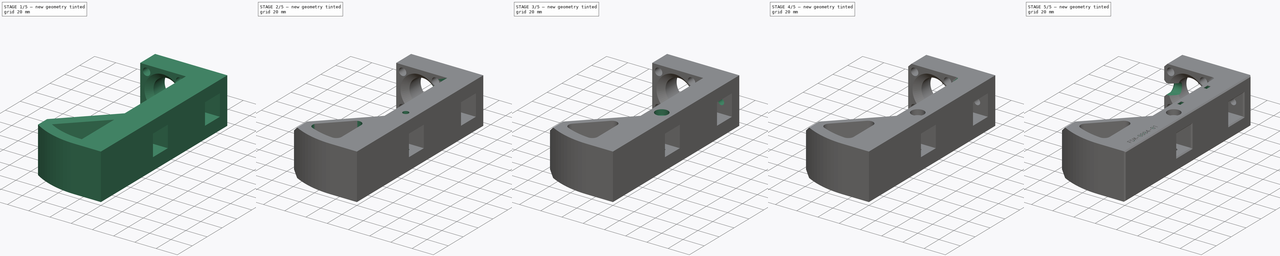
[diagram: build sequence overview — one tinted view per stage of 5, left to right]
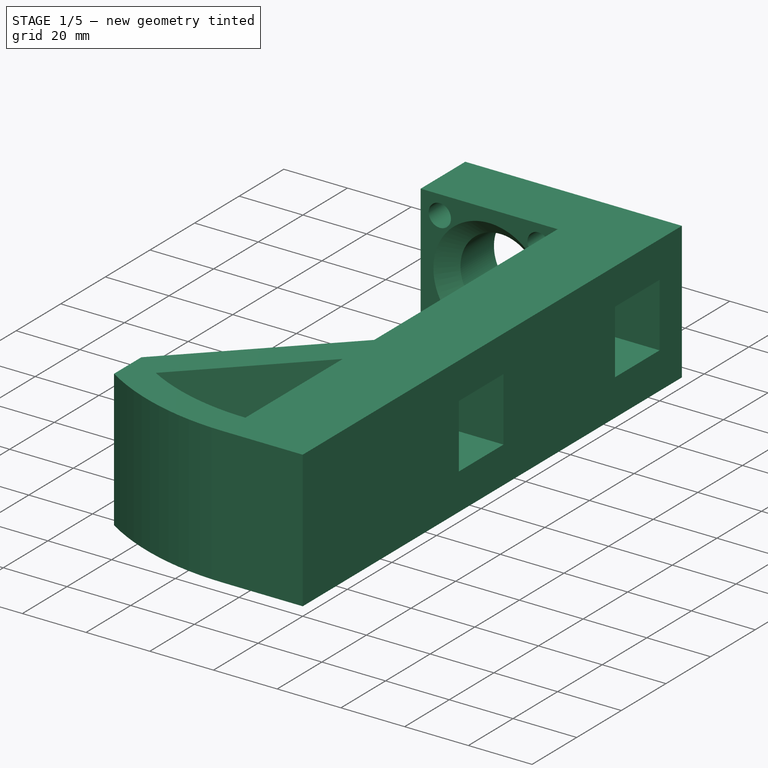
[diagram: stage 1 of 5 — iso view after this stage's code; geometry added in this stage tinted green]
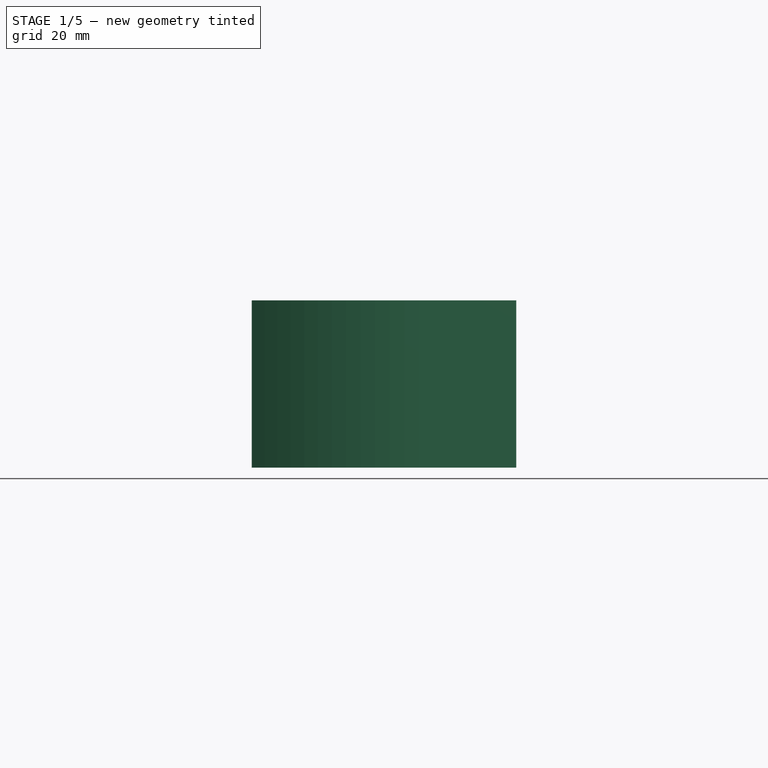
[diagram: stage 1 of 5 — front view after this stage's code; geometry added in this stage tinted green]
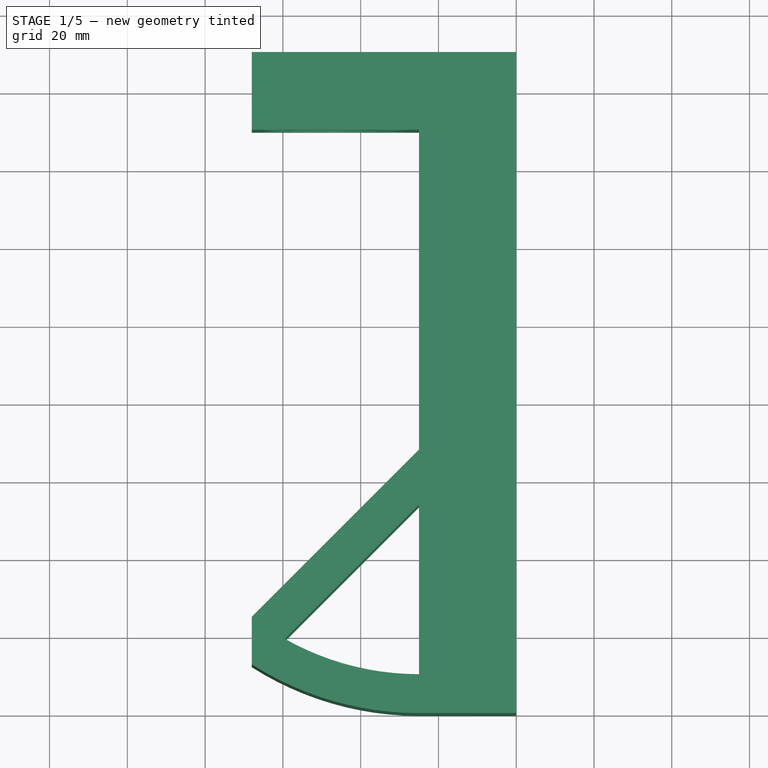
[diagram: stage 1 of 5 — top view after this stage's code; geometry added in this stage tinted green]
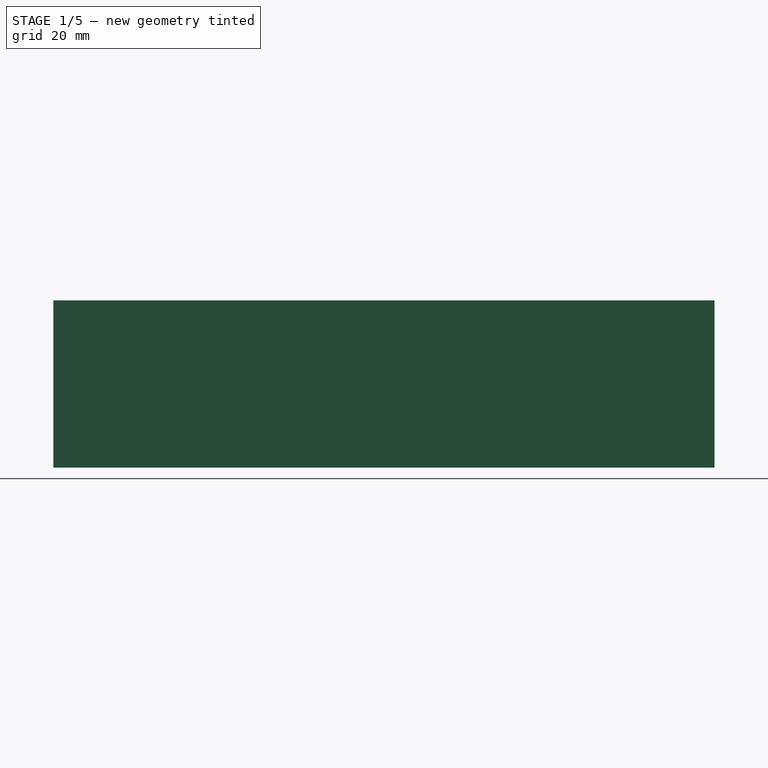
[diagram: stage 1 of 5 — right view after this stage's code; geometry added in this stage tinted green]
FCSTD DOCUMENT  (FreeCAD 0.19R24291 (Git))
Label: FDM-0004_back-right-leg
License: All rights reserved
LicenseURL: http://en.wikipedia.org/wiki/All_rights_reserved
objects: Sketcher::SketchObject×14, PartDesign::Pocket×13, PartDesign::Plane×7, PartDesign::Chamfer×6, PartDesign::Fillet×3, PartDesign::Pad×1, Part::Part2DObjectPython×1, PartDesign::Groove×1, PartDesign::Body×1
note: 71 computed .brp shape members not serialized (recipe doc carries the construction recipe); baked Part::Feature solids carry a one-line shape summary decoded from their .brp

FEATURE [Sketcher::SketchObject] Sketch005
  FullyConstrained = true
  MapMode = 5
  Support = -> [XY_Plane]
  sketch-geometry (1):
    g0: Circle CenterX=-10 CenterY=80 CenterZ=0 NormalX=0 NormalY=0 NormalZ=1 AngleXU=0 Radius=6
  constraints (3):
    c: Distance(g0,g-1) = 80
    c: Distance(g0,g-2) = 10
    c: Diameter(g0) = 12
FEATURE [Sketcher::SketchObject] Sketch006
  FullyConstrained = true
  MapMode = 5
  Support = -> [XY_Plane]
  sketch-geometry (1):
    g0: Circle CenterX=-10 CenterY=80 CenterZ=0 NormalX=0 NormalY=0 NormalZ=1 AngleXU=0 Radius=2.75
  constraints (3):
    c: Distance(g0,g-2) = 10
    c: Distance(g0,g-1) = 80
    c: Diameter(g0) = 5.5
FEATURE [Sketcher::SketchObject] Sketch
  FullyConstrained = true
  MapMode = 5
  Support = -> [XY_Plane]
  sketch-geometry (12):
    g0: LineSegment StartX=0 StartY=0 StartZ=0 EndX=0 EndY=170 EndZ=0
    g1: LineSegment StartX=0 StartY=170 StartZ=0 EndX=-68 EndY=170 EndZ=0
    g2: LineSegment StartX=-68 StartY=170 StartZ=0 EndX=-68 EndY=150 EndZ=0
    g3: LineSegment StartX=-68 StartY=150 StartZ=0 EndX=-25 EndY=150 EndZ=0
    g4: LineSegment StartX=-25 StartY=150 StartZ=0 EndX=-25 EndY=67.7642 EndZ=0
    g5: LineSegment StartX=-25 StartY=67.7642 StartZ=0 EndX=-68 EndY=24.7642 EndZ=0
    g6: LineSegment StartX=-68 StartY=24.7642 StartZ=0 EndX=-68 EndY=12.539 EndZ=0
    g7: LineSegment StartX=0 StartY=0 StartZ=0 EndX=-25 EndY=5.22817e-11 EndZ=0
    g8: ArcOfCircle CenterX=-24.9999 CenterY=80 CenterZ=0 NormalX=0 NormalY=0 NormalZ=1 AngleXU=0 Radius=80 StartAngle=4.14492 EndAngle=4.71239
    g9: ArcOfCircle CenterX=-24.9999 CenterY=80 CenterZ=0 NormalX=0 NormalY=0 NormalZ=1 AngleXU=0 Radius=70 StartAngle=4.19671 EndAngle=4.71239
    g10: LineSegment StartX=-25 StartY=10 StartZ=0 EndX=-25 EndY=53.6221 EndZ=0
    g11: LineSegment StartX=-25 StartY=53.6221 StartZ=0 EndX=-59.519 EndY=19.1031 EndZ=0
  constraints (36):
    c: Coincident(g-1,g0)
    c: PointOnObject(g0,g-2)
    c: Coincident(g0,g1)
    c: Horizontal(g1)
    c: Coincident(g1,g2)
    c: Vertical(g2)
    c: Coincident(g2,g3)
    c: Horizontal(g3)
    c: Coincident(g3,g4)
    c: Vertical(g4)
    c: Coincident(g4,g5)
    c: Coincident(g5,g6)
    c: Vertical(g6)
    c: Coincident(g0,g7)
    c: PointOnObject(g7,g-1)
    c: Coincident(g8,g6)
    c: Coincident(g8,g7)
    c: Distance(g7) = 25
    c: PointOnObject(g7,g4)
    c: Distance(g2) = 20
    c: Distance(g0) = 170
    c: Tangent(g8,g7)
    c: Radius(g8) = 80
    c: Coincident(g9,g8)
    c: Radius(g9) = 70
    c: Coincident(g9,g10)
    c: Coincident(g10,g11)
    c: Coincident(g11,g9)
    c: Vertical(g10)
    c: PointOnObject(g4,g10)
    c: Parallel(g11,g5)
    c: Angle(g11,g10) = 0.785398
    c: Distance(g10,g5) = 10
    c: PointOnObject(g5,g9)
    c: Distance(g3) = 43
    c: PointOnObject(g5,g2)
FEATURE [PartDesign::Pad] Pad
  AllowMultiFace = false
  Direction = (1,1,1)
  Length = 43
  Length2 = 100
  Profile = -> Sketch
  Refine = true
  Type = 0
FEATURE [Sketcher::SketchObject] Sketch001
  ExternalGeometry = -> [Pad]
  FullyConstrained = true
  MapMode = 5
  Placement = pos=(0,0,0) rot=(0.57735,0.57735,0.57735;2.0944rad)
  Support = -> [Pad]
  sketch-geometry (10):
    g0: LineSegment StartX=70 StartY=31.5 StartZ=0 EndX=90 EndY=31.5 EndZ=0
    g1: LineSegment StartX=90 StartY=31.5 StartZ=0 EndX=90 EndY=11.5 EndZ=0
    g2: LineSegment StartX=90 StartY=11.5 StartZ=0 EndX=70 EndY=11.5 EndZ=0
    g3: LineSegment StartX=70 StartY=11.5 StartZ=0 EndX=70 EndY=31.5 EndZ=0
    g4: LineSegment StartX=0 StartY=21.5 StartZ=0 EndX=70 EndY=21.5 EndZ=0
    g5: LineSegment StartX=140 StartY=31.5 StartZ=0 EndX=160 EndY=31.5 EndZ=0
    g6: LineSegment StartX=160 StartY=31.5 StartZ=0 EndX=160 EndY=11.5 EndZ=0
    g7: LineSegment StartX=160 StartY=11.5 StartZ=0 EndX=140 EndY=11.5 EndZ=0
    g8: LineSegment StartX=140 StartY=11.5 StartZ=0 EndX=140 EndY=31.5 EndZ=0
    g9: LineSegment StartX=90 StartY=21.5 StartZ=0 EndX=140 EndY=21.5 EndZ=0
  constraints (29):
    c: Coincident(g0,g1)
    c: Coincident(g1,g2)
    c: Coincident(g2,g3)
    c: Coincident(g3,g0)
    c: Horizontal(g0)
    c: Horizontal(g2)
    c: Vertical(g1)
    c: Vertical(g3)
    c: Symmetric(g-4,g-1,g4)
    c: Horizontal(g4)
    c: Symmetric(g0,g2,g4)
    c: Distance(g0) = 20
    c: Distance(g1) = 20
    c: Distance(g4) = 70
    c: Coincident(g5,g6)
    c: Coincident(g6,g7)
    c: Coincident(g7,g8)
    c: Coincident(g8,g5)
    c: Horizontal(g5)
    c: Horizontal(g7)
    c: Vertical(g6)
    c: Vertical(g8)
    c: Distance(g4,g8) = 70
    c: Distance(g5) = 20
    c: Distance(g8) = 20
    c: PointOnObject(g9,g1)
    c: Horizontal(g9)
    c: PointOnObject(g4,g9)
    c: Symmetric(g8,g8,g9)
FEATURE [PartDesign::Pocket] Pocket
  AllowMultiFace = false
  BaseFeature = -> Pad
  Length = 20
  Length2 = 100
  Profile = -> Sketch001
  Refine = true
  Type = 0
FEATURE [Sketcher::SketchObject] Sketch002
  ExternalGeometry = -> [Pocket]
  FullyConstrained = false
  MapMode = 5
  Placement = pos=(0,170,0) rot=(0,0.707107,0.707107;3.14159rad)
  Support = -> [Pocket]
  sketch-geometry (10):
    g0: Circle CenterX=46.5 CenterY=21.5 CenterZ=0 NormalX=0 NormalY=0 NormalZ=1 AngleXU=0 Radius=12.5
    g1: LineSegment StartX=31 StartY=37 StartZ=0 EndX=62 EndY=37 EndZ=0
    g2: LineSegment StartX=62 StartY=37 StartZ=0 EndX=62 EndY=6 EndZ=0
    g3: LineSegment StartX=62 StartY=6 StartZ=0 EndX=31 EndY=6 EndZ=0
    g4: LineSegment StartX=31 StartY=6 StartZ=0 EndX=31 EndY=37 EndZ=0
    g5: Circle CenterX=31 CenterY=37 CenterZ=0 NormalX=0 NormalY=0 NormalZ=1 AngleXU=0 Radius=1.75
    g6: Circle CenterX=62 CenterY=37 CenterZ=0 NormalX=0 NormalY=0 NormalZ=1 AngleXU=0 Radius=1.75
    g7: Circle CenterX=62 CenterY=6 CenterZ=0 NormalX=0 NormalY=0 NormalZ=1 AngleXU=0 Radius=1.75
    g8: Circle CenterX=31 CenterY=6 CenterZ=0 NormalX=0 NormalY=0 NormalZ=1 AngleXU=0 Radius=1.75
    g9: GeomPoint X=62 Y=21.5716 Z=0
  constraints (24):
    c: Distance(g0,g-3) = 21.5
    c: Distance(g0,g-4) = 21.5
    c: Diameter(g0) = 25
    c: Coincident(g1,g2)
    c: Coincident(g2,g3)
    c: Coincident(g3,g4)
    c: Coincident(g4,g1)
    c: Horizontal(g1)
    c: Horizontal(g3)
    c: Vertical(g2)
    c: Vertical(g4)
    c: Distance(g2) = 31
    c: Distance(g1) = 31
    c: Coincident(g5,g1)
    c: Coincident(g6,g1)
    c: Coincident(g7,g2)
    c: Coincident(g8,g3)
    c: Diameter(g5) = 3.5
    c: Diameter(g8) = 3.5
    c: Diameter(g7) = 3.5
    c: Diameter(g6) = 3.5
    c: PointOnObject(g9,g2)
    c: Distance(g0,g2) = 15.5
    c: Distance(g0,g1) = 15.5
FEATURE [PartDesign::Pocket] Pocket001
  AllowMultiFace = false
  BaseFeature = -> Pocket
  Length = 20
  Length2 = 100
  Profile = -> Sketch002
  Refine = true
  Type = 0
FEATURE [PartDesign::Chamfer] Chamfer
  Angle = 45
  Base = -> Pocket001 [Edge64]
  BaseFeature = -> Pocket001
  ChamferType = 0
  FlipDirection = false
  Size = 5
  Size2 = 1
  SupportTransform = false
FEATURE [Sketcher::SketchObject] Sketch003
  FullyConstrained = true
  MapMode = 5
  Placement = pos=(0,150,0) rot=(1,0,0;1.5708rad)
  Support = -> [Pocket001]
  sketch-geometry (8):
    g0: Circle CenterX=-31 CenterY=37 CenterZ=0 NormalX=0 NormalY=0 NormalZ=1 AngleXU=0 Radius=3.5
    g1: Circle CenterX=-62 CenterY=6 CenterZ=0 NormalX=0 NormalY=0 NormalZ=1 AngleXU=0 Radius=3.5
    g2: Circle CenterX=-62 CenterY=37 CenterZ=0 NormalX=0 NormalY=0 NormalZ=1 AngleXU=0 Radius=3.5
    g3: Circle CenterX=-31 CenterY=6 CenterZ=0 NormalX=0 NormalY=0 NormalZ=1 AngleXU=0 Radius=3.5
    g4: LineSegment StartX=-62 StartY=37 StartZ=0 EndX=-31 EndY=37 EndZ=0
    g5: LineSegment StartX=-31 StartY=37 StartZ=0 EndX=-31 EndY=6 EndZ=0
    g6: LineSegment StartX=-31 StartY=6 StartZ=0 EndX=-62 EndY=6 EndZ=0
    g7: LineSegment StartX=-62 StartY=6 StartZ=0 EndX=-62 EndY=37 EndZ=0
  constraints (20):
    c: Diameter(g0) = 7
    c: Diameter(g1) = 7
    c: Diameter(g2) = 7
    c: Diameter(g3) = 7
    c: Coincident(g4,g5)
    c: Coincident(g5,g6)
    c: Coincident(g6,g7)
    c: Coincident(g7,g4)
    c: Horizontal(g4)
    c: Horizontal(g6)
    c: Vertical(g5)
    c: Vertical(g7)
    c: Coincident(g4,g2)
    c: Coincident(g5,g3)
    c: Coincident(g0,g4)
    c: Coincident(g1,g6)
    c: DistanceY(g7,g7) = 31
    c: DistanceX(g4,g4) = 31
    c: DistanceX(g3,g-1) = 31
    c: DistanceY(g-1,g3) = 6
FEATURE [PartDesign::Pocket] Pocket002
  AllowMultiFace = false
  BaseFeature = -> Chamfer
  Length = 15
  Length2 = 100
  Profile = -> Sketch003
  Refine = true
  Type = 0
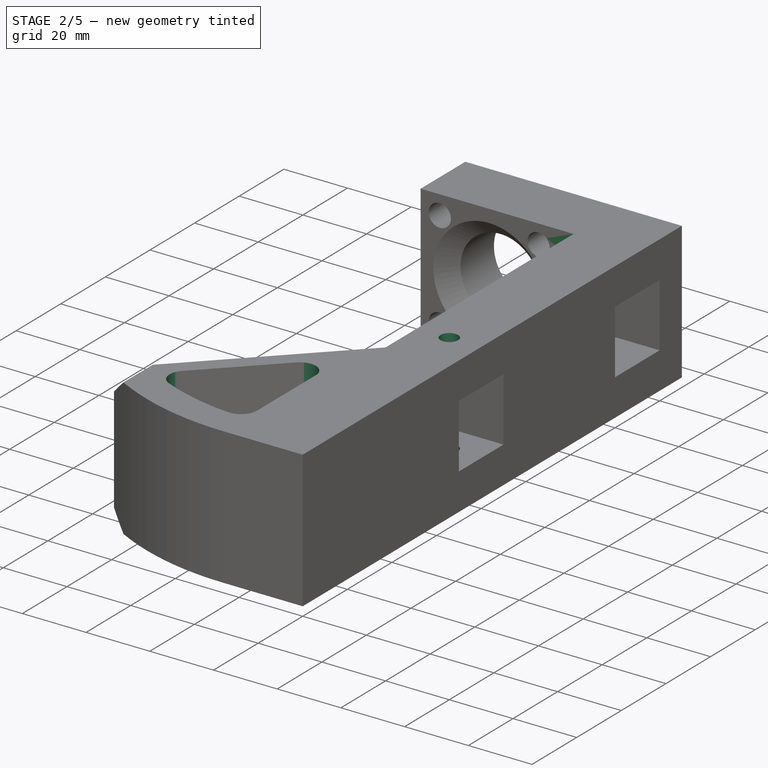
[diagram: stage 2 of 5 — iso view after this stage's code; geometry added in this stage tinted green]
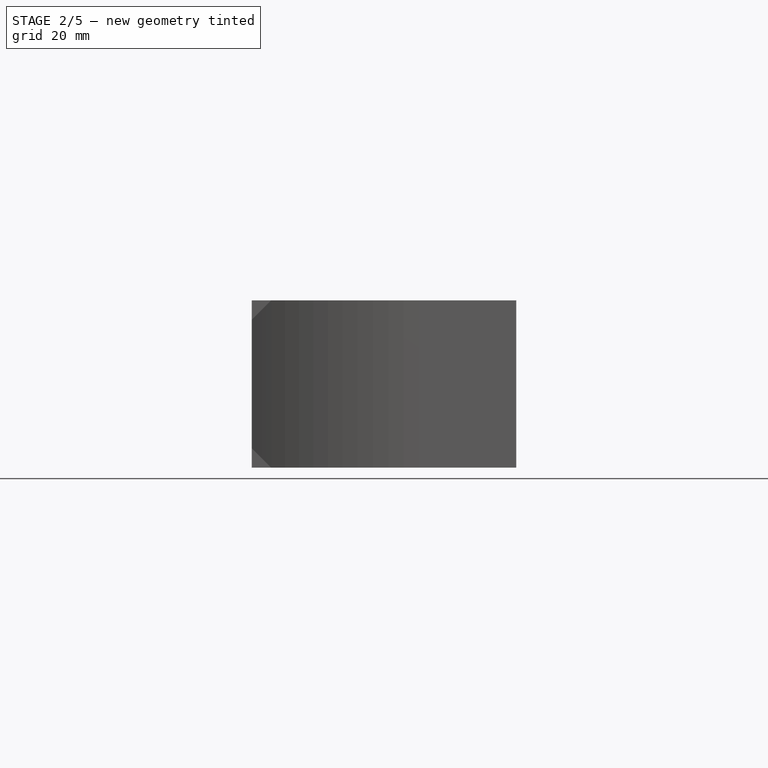
[diagram: stage 2 of 5 — front view after this stage's code; geometry added in this stage tinted green]
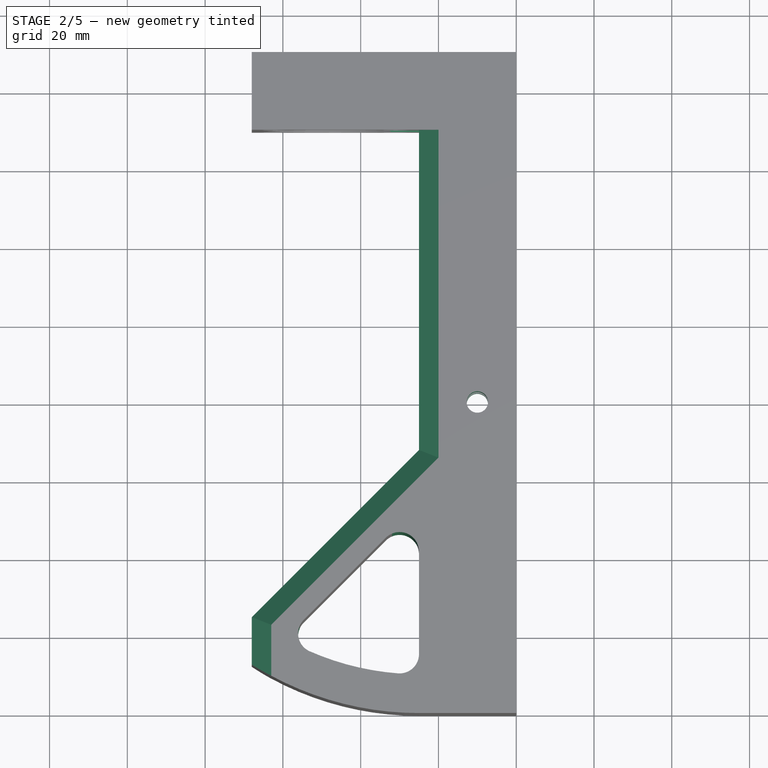
[diagram: stage 2 of 5 — top view after this stage's code; geometry added in this stage tinted green]
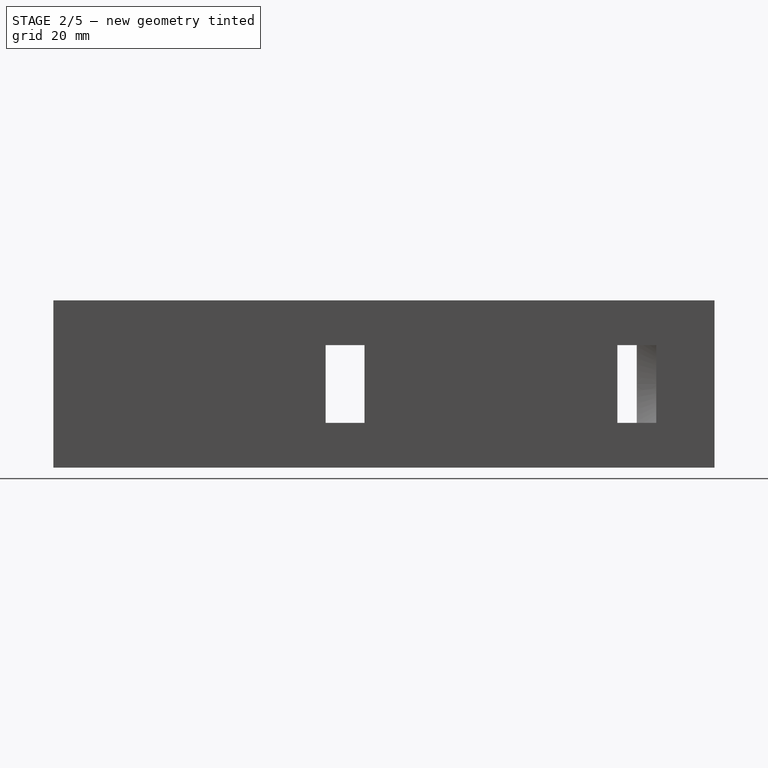
[diagram: stage 2 of 5 — right view after this stage's code; geometry added in this stage tinted green]
FEATURE [PartDesign::Chamfer] Chamfer001
  Angle = 45
  Base = -> Pocket002 [Edge25,Edge26,Edge27,Edge17,Edge16,Edge15]
  BaseFeature = -> Pocket002
  ChamferType = 0
  FlipDirection = false
  Size = 5
  Size2 = 1
  SupportTransform = false
FEATURE [PartDesign::Fillet] Fillet
  Base = -> Chamfer001 [Edge77,Edge78,Edge79]
  BaseFeature = -> Chamfer001
  Radius = 5
  SupportTransform = false
FEATURE [PartDesign::Plane] DatumPlane
  Length = 218.03
  MapMode = 5
  Placement = pos=(-20,0,0) rot=(0.57735,0.57735,0.57735;2.0944rad)
  ResizeMode = 0
  Support = -> [Fillet]
  Width = 91.0304
FEATURE [Sketcher::SketchObject] Sketch004
  FullyConstrained = true
  MapMode = 5
  Placement = pos=(-20,0,0) rot=(0.57735,0.57735,0.57735;2.0944rad)
  sketch-geometry (8):
    g0: LineSegment StartX=70 StartY=31.5 StartZ=0 EndX=80 EndY=31.5 EndZ=0
    g1: LineSegment StartX=80 StartY=31.5 StartZ=0 EndX=80 EndY=11.5 EndZ=0
    g2: LineSegment StartX=80 StartY=11.5 StartZ=0 EndX=70 EndY=11.5 EndZ=0
    g3: LineSegment StartX=70 StartY=11.5 StartZ=0 EndX=70 EndY=31.5 EndZ=0
    g4: LineSegment StartX=145 StartY=31.5 StartZ=0 EndX=155 EndY=31.5 EndZ=0
    g5: LineSegment StartX=155 StartY=31.5 StartZ=0 EndX=155 EndY=11.5 EndZ=0
    g6: LineSegment StartX=155 StartY=11.5 StartZ=0 EndX=145 EndY=11.5 EndZ=0
    g7: LineSegment StartX=145 StartY=11.5 StartZ=0 EndX=145 EndY=31.5 EndZ=0
  constraints (24):
    c: Coincident(g0,g1)
    c: Coincident(g1,g2)
    c: Coincident(g2,g3)
    c: Coincident(g3,g0)
    c: Horizontal(g0)
    c: Horizontal(g2)
    c: Vertical(g1)
    c: Vertical(g3)
    c: Coincident(g4,g5)
    c: Coincident(g5,g6)
    c: Coincident(g6,g7)
    c: Coincident(g7,g4)
    c: Horizontal(g4)
    c: Horizontal(g6)
    c: Vertical(g5)
    c: Vertical(g7)
    c: DistanceX(g-1,g2) = 70
    c: DistanceX(g-1,g1) = 80
    c: DistanceX(g-1,g6) = 145
    c: DistanceX(g-1,g5) = 155
    c: PointOnObject(g6,g2)
    c: PointOnObject(g4,g0)
    c: DistanceY(g-1,g2) = 11.5
    c: DistanceY(g-1,g0) = 31.5
FEATURE [PartDesign::Pocket] Pocket003
  AllowMultiFace = false
  BaseFeature = -> Fillet
  Length = 20
  Length2 = 100
  Profile = -> Sketch004
  Refine = true
  Type = 0
FEATURE [PartDesign::Pocket] Pocket004
  AllowMultiFace = false
  BaseFeature = -> Pocket003
  Length = 5
  Length2 = 100
  Profile = -> Sketch005
  Refine = true
  Reversed = true
  Type = 0
FEATURE [PartDesign::Pocket] Pocket005
  AllowMultiFace = false
  BaseFeature = -> Pocket004
  Length = 5
  Length2 = 100
  Profile = -> Sketch006
  Refine = true
  Reversed = true
  Type = 1
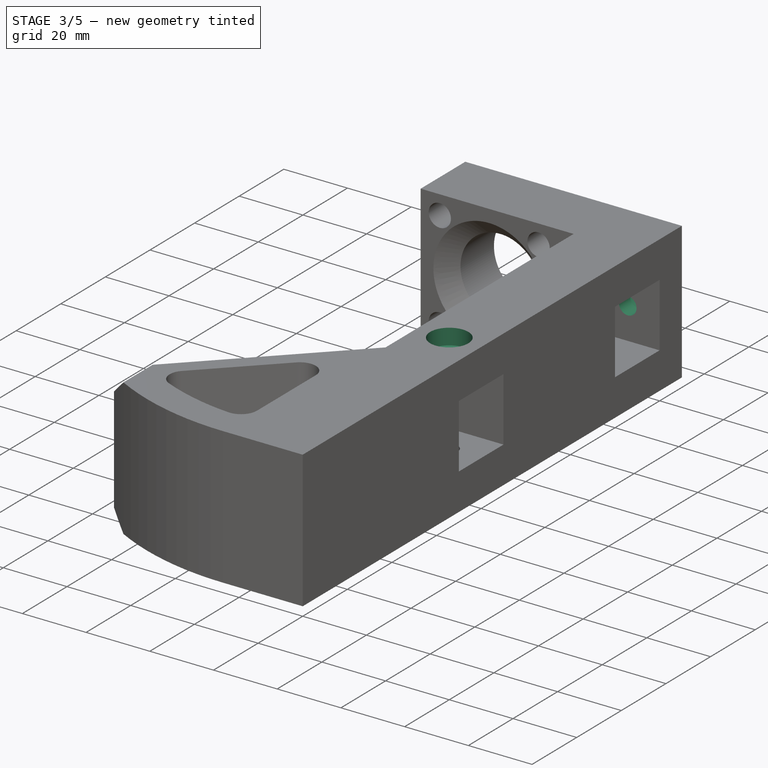
[diagram: stage 3 of 5 — iso view after this stage's code; geometry added in this stage tinted green]
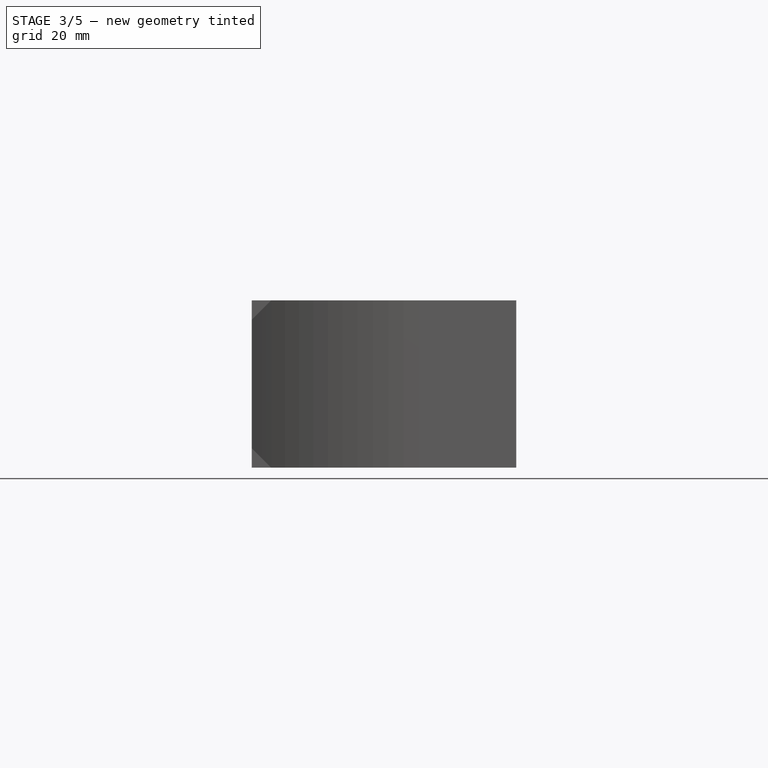
[diagram: stage 3 of 5 — front view after this stage's code; geometry added in this stage tinted green]
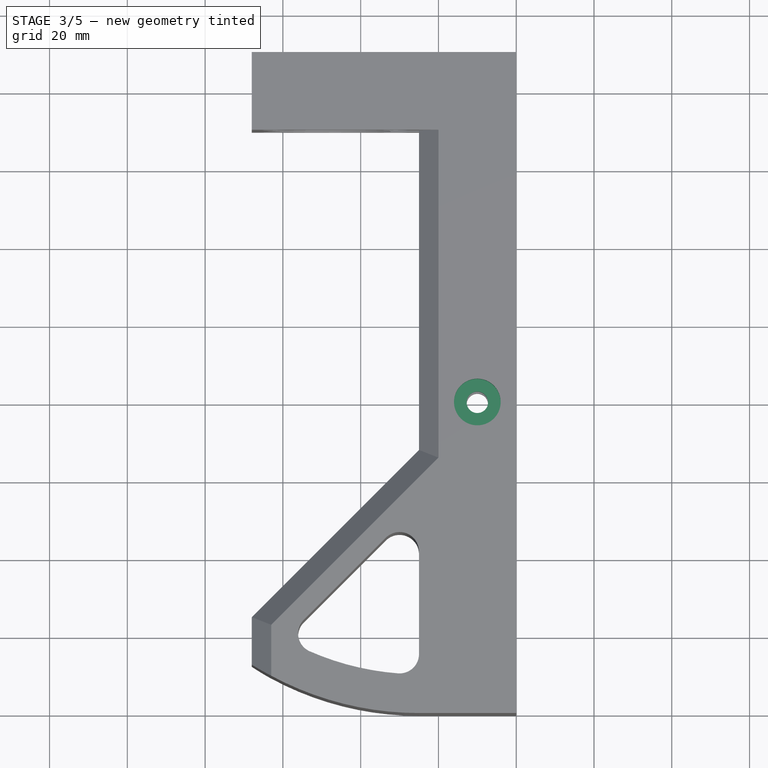
[diagram: stage 3 of 5 — top view after this stage's code; geometry added in this stage tinted green]
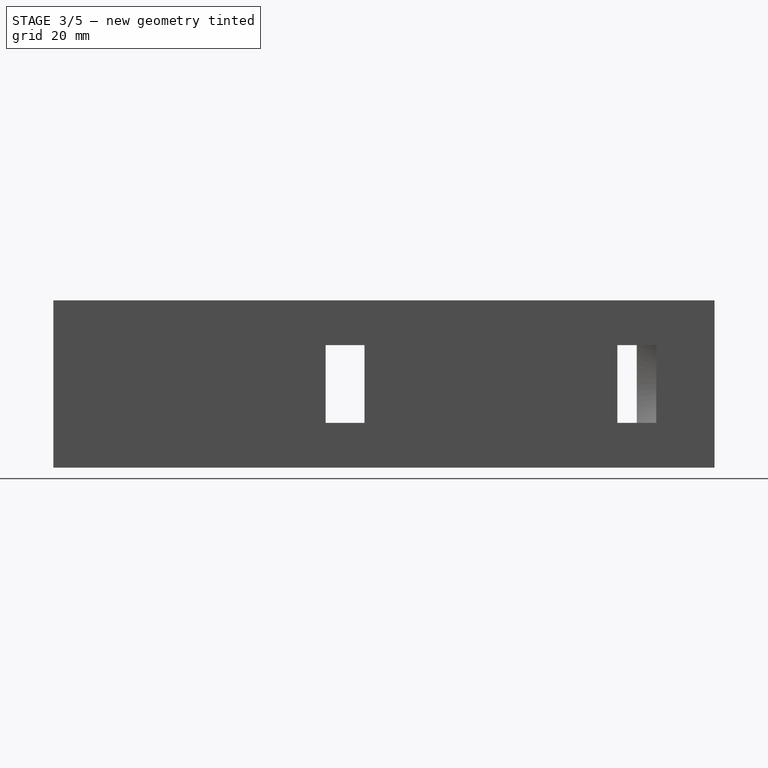
[diagram: stage 3 of 5 — right view after this stage's code; geometry added in this stage tinted green]
FEATURE [PartDesign::Plane] DatumPlane001
  Length = 119.933
  MapMode = 5
  Placement = pos=(0,0,43) rot=(0,0,1;0rad)
  ResizeMode = 0
  Support = -> [Pocket005]
  Width = 221.933
FEATURE [Sketcher::SketchObject] Sketch007
  FullyConstrained = true
  MapMode = 5
  Placement = pos=(0,0,43) rot=(0,0,1;0rad)
  Support = -> [DatumPlane001]
  sketch-geometry (1):
    g0: Circle CenterX=-10 CenterY=80 CenterZ=0 NormalX=0 NormalY=0 NormalZ=1 AngleXU=0 Radius=6
  constraints (3):
    c: DistanceX(g0,g-1) = 10
    c: DistanceY(g-1,g0) = 80
    c: Diameter(g0) = 12
FEATURE [PartDesign::Pocket] Pocket006
  AllowMultiFace = false
  BaseFeature = -> Pocket005
  Length = 5
  Length2 = 100
  Profile = -> Sketch007
  Refine = true
  Type = 0
FEATURE [PartDesign::Plane] DatumPlane002
  Length = 108.905
  MapMode = 5
  Placement = pos=(0,170,0) rot=(0,0.707107,0.707107;3.14159rad)
  ResizeMode = 0
  Support = -> [Pocket006]
  Width = 83.9047
FEATURE [Sketcher::SketchObject] Sketch008
  FullyConstrained = true
  MapMode = 5
  Placement = pos=(0,170,0) rot=(0,0.707107,0.707107;3.14159rad)
  Support = -> [DatumPlane002]
  sketch-geometry (1):
    g0: Circle CenterX=10 CenterY=21.5 CenterZ=0 NormalX=0 NormalY=0 NormalZ=1 AngleXU=0 Radius=6
  constraints (3):
    c: DistanceX(g-1,g0) = 10
    c: DistanceY(g-1,g0) = 21.5
    c: Diameter(g0) = 12
FEATURE [PartDesign::Pocket] Pocket007
  AllowMultiFace = false
  BaseFeature = -> Pocket006
  Length = 5
  Length2 = 100
  Profile = -> Sketch008
  Refine = true
  Type = 0
FEATURE [Sketcher::SketchObject] Sketch009
  FullyConstrained = true
  MapMode = 5
  Placement = pos=(0,170,0) rot=(0,0.707107,0.707107;3.14159rad)
  Support = -> [DatumPlane002]
  sketch-geometry (1):
    g0: Circle CenterX=10 CenterY=21.5 CenterZ=0 NormalX=0 NormalY=0 NormalZ=1 AngleXU=0 Radius=2.75
  constraints (3):
    c: DistanceX(g-1,g0) = 10
    c: DistanceY(g-1,g0) = 21.5
    c: Diameter(g0) = 5.5
FEATURE [PartDesign::Pocket] Pocket008
  AllowMultiFace = false
  BaseFeature = -> Pocket007
  Length = 10
  Length2 = 100
  Profile = -> Sketch009
  Refine = true
  Type = 0
FEATURE [PartDesign::Plane] DatumPlane003
  Length = 227.182
  MapMode = 5
  Placement = pos=(-46.3821,46.3821,0) rot=(-0.281085,0.678598,0.678598;3.68962rad)
  ResizeMode = 0
  Support = -> [Pocket008]
  Width = 91.5355
FEATURE [Sketcher::SketchObject] Sketch011
  AttachmentOffset = pos=(23,31,0) rot=(0,0,1;0rad)
  FullyConstrained = false
  MapMode = 5
  Placement = pos=(-62.6456,30.1187,31) rot=(-0.281085,0.678598,0.678598;3.68962rad)
  Support = -> [DatumPlane003]
  sketch-geometry (12):
    g0: LineSegment StartX=-1.5 StartY=-1.5 StartZ=0 EndX=-5 EndY=-1.5 EndZ=0
    g1: LineSegment StartX=-5 StartY=-1.5 StartZ=0 EndX=-5 EndY=1.5 EndZ=0
    g2: LineSegment StartX=-5 StartY=1.5 StartZ=0 EndX=-1.5 EndY=1.5 EndZ=0
    g3: LineSegment StartX=-1.5 StartY=1.5 StartZ=0 EndX=-1.5 EndY=5 EndZ=0
    g4: LineSegment StartX=-1.5 StartY=5 StartZ=0 EndX=1.5 EndY=5 EndZ=0
    g5: LineSegment StartX=1.5 StartY=5 StartZ=0 EndX=1.5 EndY=1.5 EndZ=0
    g6: LineSegment StartX=1.5 StartY=1.5 StartZ=0 EndX=5 EndY=1.5 EndZ=0
    g7: LineSegment StartX=5 StartY=1.5 StartZ=0 EndX=5 EndY=-1.5 EndZ=0
    g8: LineSegment StartX=5 StartY=-1.5 StartZ=0 EndX=1.5 EndY=-1.5 EndZ=0
    g9: LineSegment StartX=1.5 StartY=-1.5 StartZ=0 EndX=1.5 EndY=-5 EndZ=0
    g10: LineSegment StartX=1.5 StartY=-5 StartZ=0 EndX=-1.5 EndY=-5 EndZ=0
    g11: LineSegment StartX=-1.5 StartY=-5 StartZ=0 EndX=-1.5 EndY=-1.5 EndZ=0
  constraints (17):
    c: Coincident(g0,g1)
    c: Vertical(g1)
    c: Coincident(g1,g2)
    c: Coincident(g2,g3)
    c: Coincident(g3,g4)
    c: Horizontal(g4)
    c: Coincident(g4,g5)
    c: Coincident(g5,g6)
    c: Coincident(g6,g7)
    c: Vertical(g7)
    c: Coincident(g7,g8)
    c: Coincident(g8,g9)
    c: Coincident(g9,g10)
    c: Horizontal(g10)
    c: Coincident(g10,g11)
    c: Vertical(g11)
    c: Coincident(g11,g0)
FEATURE [Sketcher::SketchObject] Sketch014
  AttachmentOffset = pos=(23,31,0) rot=(0,0,-1;1.5708rad)
  FullyConstrained = false
  MapMode = 5
  Placement = pos=(-62.6456,30.1187,31) rot=(-0.678598,0.281085,0.678598;2.59356rad)
  Support = -> [DatumPlane003]
  sketch-geometry (32):
    g0: LineSegment StartX=8 StartY=-1.5 StartZ=0 EndX=8 EndY=1.5 EndZ=0
    g1: LineSegment StartX=8 StartY=1.5 StartZ=0 EndX=21.9488 EndY=1.5 EndZ=0
    g2: ArcOfCircle CenterX=1.8e-15 CenterY=1.8e-15 CenterZ=0 NormalX=0 NormalY=0 NormalZ=1 AngleXU=3.14159 Radius=22 StartAngle=3.20983 EndAngle=4.64415
    g3: LineSegment StartX=1.5 StartY=21.9488 StartZ=0 EndX=1.5 EndY=17 EndZ=0
    g4: LineSegment StartX=1.5 StartY=17 StartZ=0 EndX=-1.5 EndY=17 EndZ=0
    g5: LineSegment StartX=-1.5 StartY=17 StartZ=0 EndX=-1.5 EndY=21.9488 EndZ=0
    g6: ArcOfCircle CenterX=7.1e-15 CenterY=-5.3e-15 CenterZ=0 NormalX=0 NormalY=0 NormalZ=1 AngleXU=3.14159 Radius=22 StartAngle=4.78062 EndAngle=6.21495
    g7: LineSegment StartX=-21.9488 StartY=1.5 StartZ=0 EndX=-17 EndY=1.5 EndZ=0
    g8: LineSegment StartX=-17 StartY=1.5 StartZ=0 EndX=-17 EndY=-1.5 EndZ=0
    g9: LineSegment StartX=-17 StartY=-1.5 StartZ=0 EndX=-21.9488 EndY=-1.5 EndZ=0
    g10: ArcOfCircle CenterX=-7.1e-15 CenterY=5.3e-15 CenterZ=0 NormalX=0 NormalY=0 NormalZ=1 AngleXU=3.14159 Radius=22 StartAngle=0.0682348 EndAngle=1.50256
    g11: LineSegment StartX=-1.5 StartY=-21.9488 StartZ=0 EndX=-1.5 EndY=-8 EndZ=0
    g12: LineSegment StartX=-1.5 StartY=-8 StartZ=0 EndX=1.5 EndY=-8 EndZ=0
    g13: LineSegment StartX=1.5 StartY=-8 StartZ=0 EndX=1.5 EndY=-21.9488 EndZ=0
    g14: ArcOfCircle CenterX=1.8e-15 CenterY=-7.1e-15 CenterZ=0 NormalX=0 NormalY=0 NormalZ=1 AngleXU=3.14159 Radius=22 StartAngle=1.63903 EndAngle=3.07336
    g15: LineSegment StartX=21.9488 StartY=-1.5 StartZ=0 EndX=8 EndY=-1.5 EndZ=0
    g16: LineSegment StartX=-1.5 StartY=-28 StartZ=0 EndX=-1.5 EndY=-24.955 EndZ=0
    g17: ArcOfCircle CenterX=5.3e-15 CenterY=-7.1e-15 CenterZ=0 NormalX=0 NormalY=0 NormalZ=1 AngleXU=-1e-16 Radius=25 StartAngle=3.20163 EndAngle=4.65235
    g18: LineSegment StartX=-24.955 StartY=-1.5 StartZ=0 EndX=-28 EndY=-1.5 EndZ=0
    g19: LineSegment StartX=-28 StartY=-1.5 StartZ=0 EndX=-28 EndY=1.5 EndZ=0
    g20: LineSegment StartX=-28 StartY=1.5 StartZ=0 EndX=-24.955 EndY=1.5 EndZ=0
    g21: ArcOfCircle CenterX=8.9e-15 CenterY=-7.1e-15 CenterZ=0 NormalX=0 NormalY=0 NormalZ=1 AngleXU=-1e-16 Radius=25 StartAngle=1.63083 EndAngle=3.08156
    g22: LineSegment StartX=-1.5 StartY=24.955 StartZ=0 EndX=-1.5 EndY=28 EndZ=0
    g23: LineSegment StartX=-1.5 StartY=28 StartZ=0 EndX=1.5 EndY=28 EndZ=0
    g24: LineSegment StartX=1.5 StartY=28 StartZ=0 EndX=1.5 EndY=24.955 EndZ=0
    g25: ArcOfCircle CenterX=7.1e-15 CenterY=-5.3e-15 CenterZ=0 NormalX=0 NormalY=0 NormalZ=1 AngleXU=-1e-16 Radius=25 StartAngle=0.0600361 EndAngle=1.51076
    g26: LineSegment StartX=24.955 StartY=1.5 StartZ=0 EndX=28 EndY=1.5 EndZ=0
    g27: LineSegment StartX=28 StartY=1.5 StartZ=0 EndX=28 EndY=-1.5 EndZ=0
    g28: LineSegment StartX=28 StartY=-1.5 StartZ=0 EndX=24.955 EndY=-1.5 EndZ=0
    g29: ArcOfCircle CenterX=5.3e-15 CenterY=1.8e-15 CenterZ=0 NormalX=0 NormalY=0 NormalZ=1 AngleXU=-1e-16 Radius=25 StartAngle=4.77243 EndAngle=6.22315
    g30: LineSegment StartX=1.5 StartY=-24.955 StartZ=0 EndX=1.5 EndY=-28 EndZ=0
    g31: LineSegment StartX=1.5 StartY=-28 StartZ=0 EndX=-1.5 EndY=-28 EndZ=0
  constraints (39):
    c: Vertical(g0)
    c: Coincident(g0,g1)
    c: Coincident(g1,g2)
    c: Coincident(g2,g3)
    c: Coincident(g3,g4)
    c: Horizontal(g4)
    c: Coincident(g4,g5)
    c: Coincident(g5,g6)
    c: Coincident(g6,g7)
    c: Coincident(g7,g8)
    c: Vertical(g8)
    c: Coincident(g8,g9)
    c: Coincident(g9,g10)
    c: Coincident(g10,g11)
    c: Coincident(g11,g12)
    c: Coincident(g12,g13)
    c: Coincident(g13,g14)
    c: Coincident(g14,g15)
    c: Coincident(g15,g0)
    c: Coincident(g16,g17)
    c: Coincident(g17,g18)
    c: Coincident(g18,g19)
    c: Vertical(g19)
    c: Coincident(g19,g20)
    c: Coincident(g20,g21)
    c: Coincident(g21,g22)
    c: Coincident(g22,g23)
    c: Horizontal(g23)
    c: Coincident(g23,g24)
    c: Coincident(g24,g25)
    c: Coincident(g25,g26)
    c: Coincident(g26,g27)
    c: Vertical(g27)
    c: Coincident(g27,g28)
    c: Coincident(g28,g29)
    c: Coincident(g29,g30)
    c: Coincident(g30,g31)
    c: Horizontal(g31)
    c: Coincident(g31,g16)
FEATURE [PartDesign::Pocket] Pocket009
  AllowMultiFace = false
  BaseFeature = -> Pocket008
  Length = 1
  Length2 = 100
  Profile = -> Sketch011
  Refine = true
  Type = 0
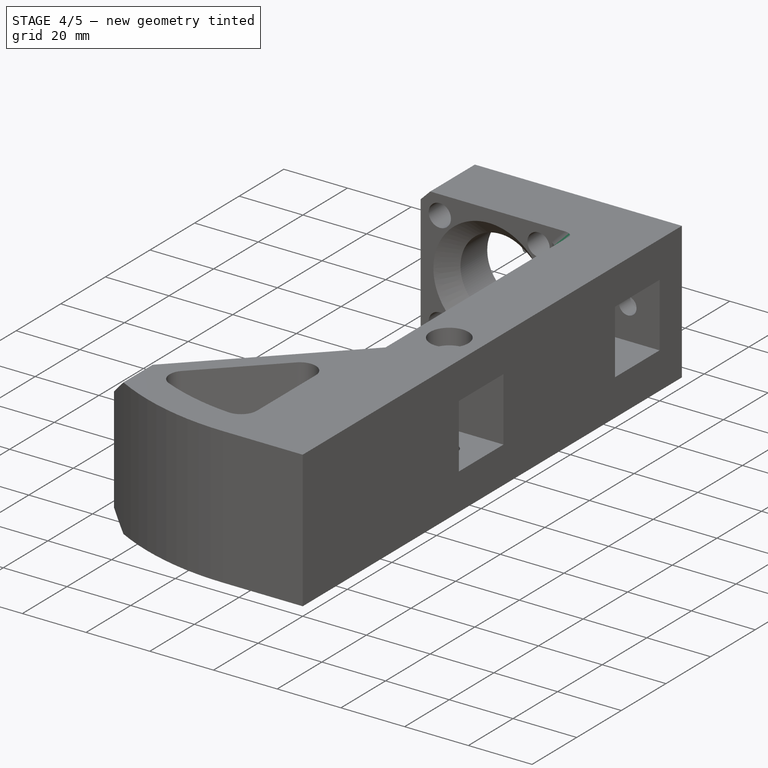
[diagram: stage 4 of 5 — iso view after this stage's code; geometry added in this stage tinted green]
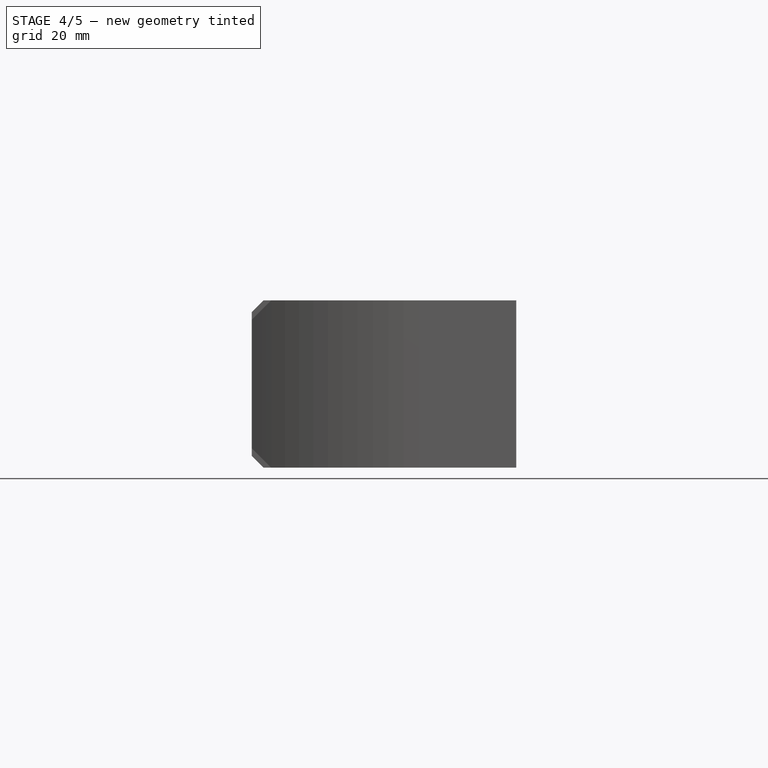
[diagram: stage 4 of 5 — front view after this stage's code; geometry added in this stage tinted green]
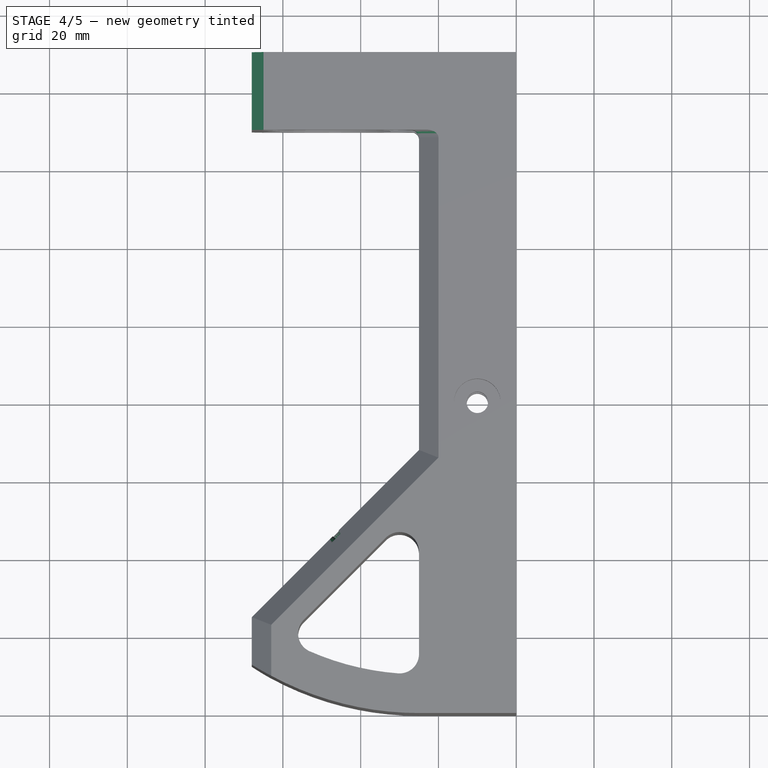
[diagram: stage 4 of 5 — top view after this stage's code; geometry added in this stage tinted green]
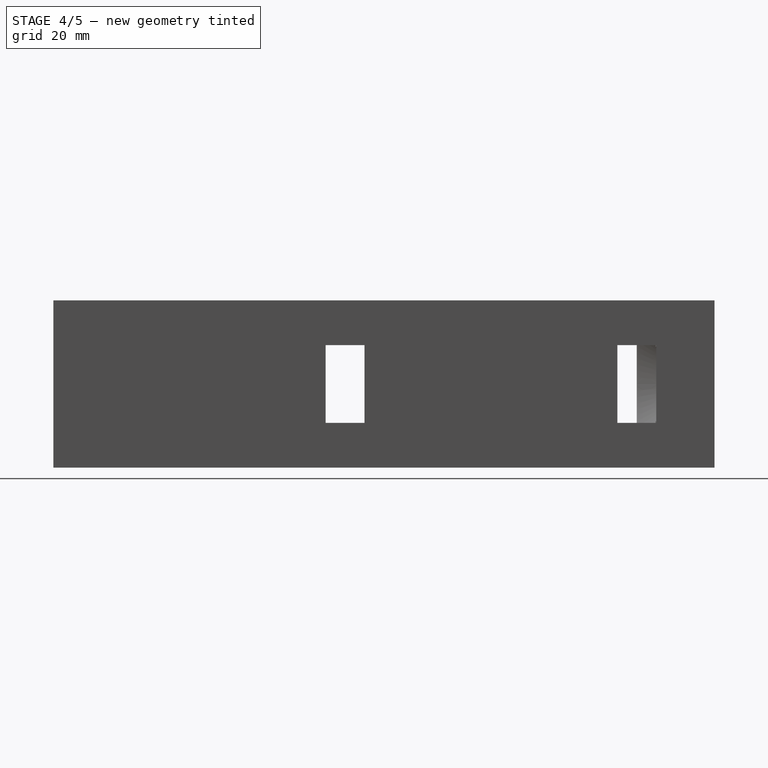
[diagram: stage 4 of 5 — right view after this stage's code; geometry added in this stage tinted green]
FEATURE [PartDesign::Pocket] Pocket010
  AllowMultiFace = false
  BaseFeature = -> Pocket009
  Length = 1
  Length2 = 100
  Profile = -> Sketch014
  Refine = true
  Type = 0
FEATURE [PartDesign::Chamfer] Chamfer003
  Angle = 45
  Base = -> Pocket010 [Edge9,Edge65]
  BaseFeature = -> Pocket010
  ChamferType = 0
  FlipDirection = false
  Size = 3
  Size2 = 1
  SupportTransform = false
FEATURE [PartDesign::Fillet] Fillet001
  Base = -> Chamfer003 [Edge99]
  BaseFeature = -> Chamfer003
  Radius = 1
  SupportTransform = false
FEATURE [PartDesign::Fillet] Fillet002
  Base = -> Fillet001 [Edge44,Edge42,Edge49,Edge48]
  BaseFeature = -> Fillet001
  Radius = 2
  SupportTransform = false
FEATURE [PartDesign::Chamfer] Chamfer004
  Angle = 45
  Base = -> Fillet002 [Edge122]
  BaseFeature = -> Fillet002
  ChamferType = 0
  FlipDirection = false
  Size = 3
  Size2 = 1
  SupportTransform = false
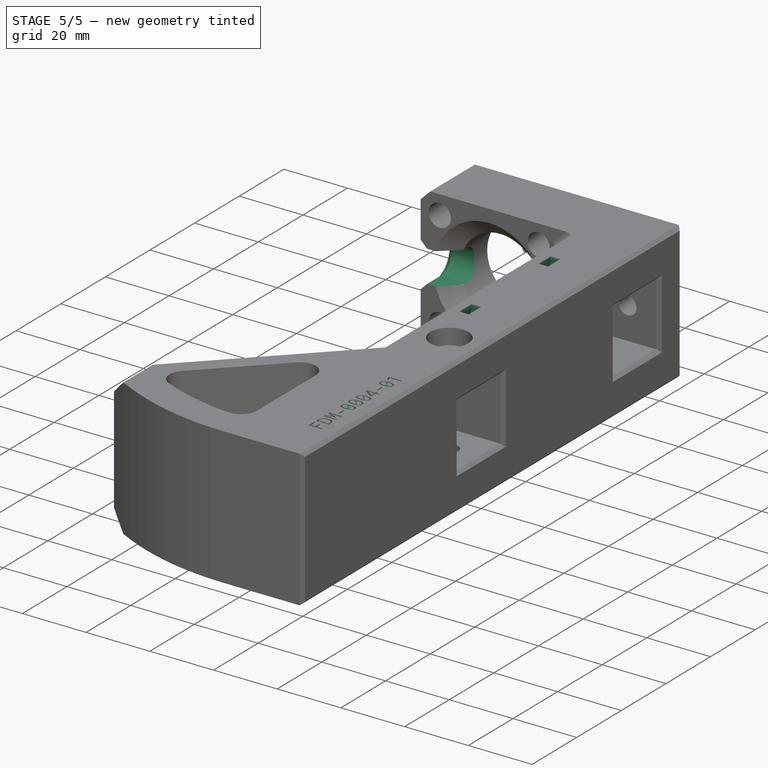
[diagram: stage 5 of 5 — iso view after this stage's code; geometry added in this stage tinted green]
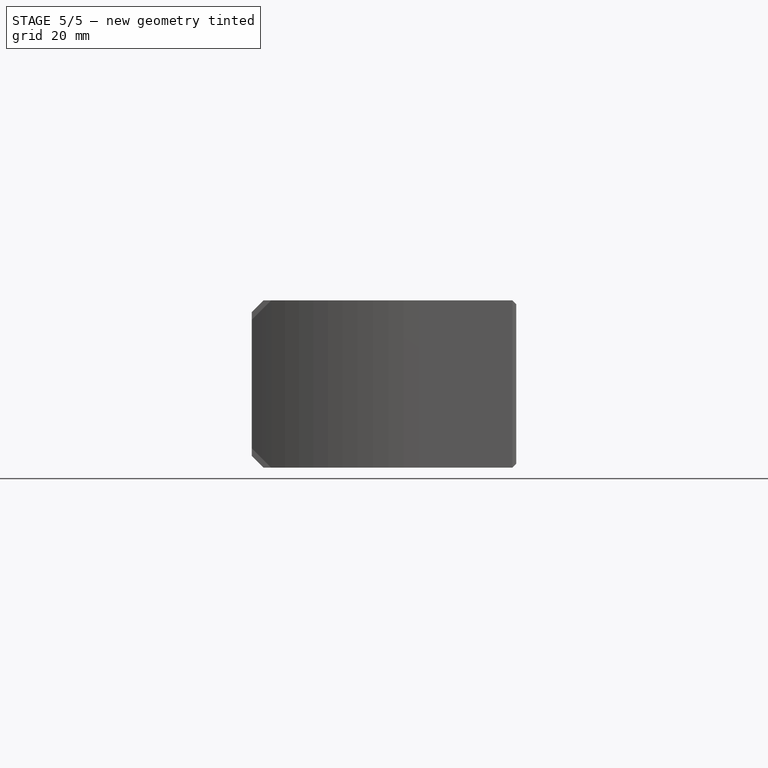
[diagram: stage 5 of 5 — front view after this stage's code; geometry added in this stage tinted green]
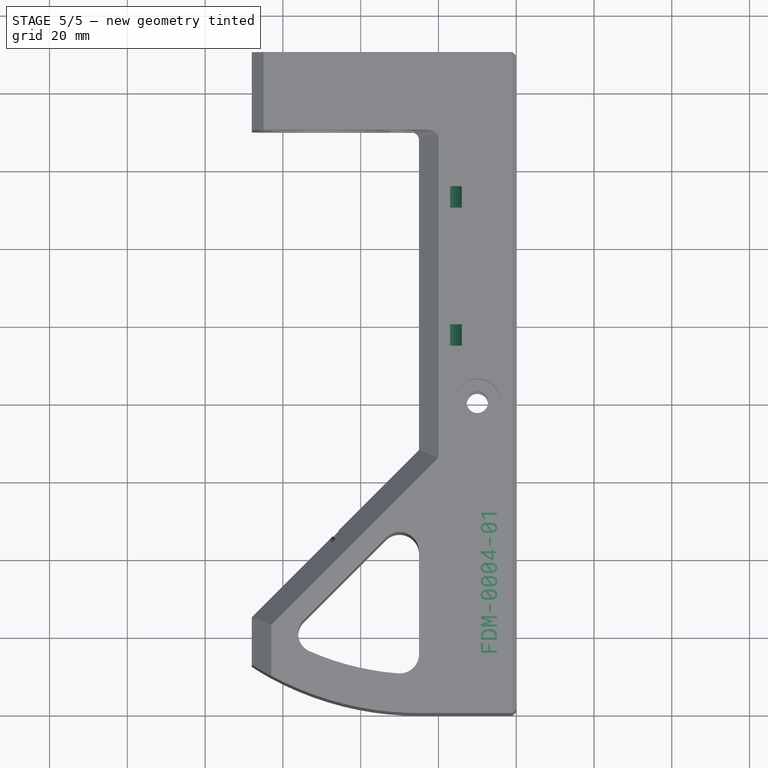
[diagram: stage 5 of 5 — top view after this stage's code; geometry added in this stage tinted green]
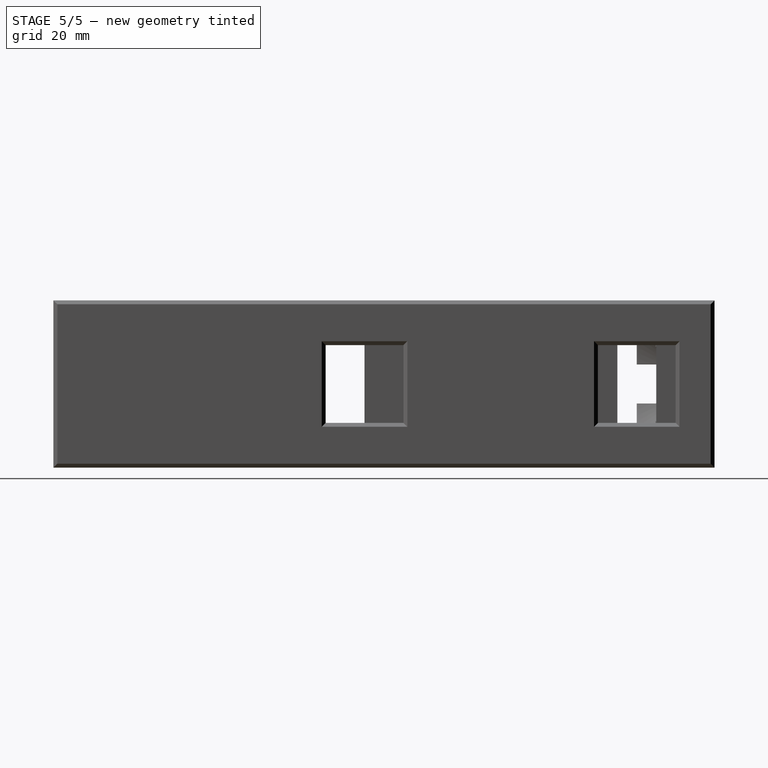
[diagram: stage 5 of 5 — right view after this stage's code; geometry added in this stage tinted green]
FEATURE [PartDesign::Chamfer] Chamfer005
  Angle = 45
  Base = -> Chamfer004 [Face15]
  BaseFeature = -> Chamfer004
  ChamferType = 0
  FlipDirection = false
  Size = 1
  Size2 = 1
  SupportTransform = false
FEATURE [PartDesign::Plane] DatumPlane005
  Length = 218.03
  MapMode = 5
  Placement = pos=(-25,0,0) rot=(0.57735,-0.57735,-0.57735;2.0944rad)
  ResizeMode = 0
  Support = -> [Chamfer005]
  Width = 91.0304
FEATURE [Part::Part2DObjectPython] ShapeString  label="PN"  # Draft 2D object (typed FeaturePython)
  AttachmentOffset = pos=(-5,15,0) rot=(0,0,1;1.5708rad)
  FontFile = ../../lib/fonts/RobotoMono-VariableFont_weight.ttf
  MapMode = 5
  Placement = pos=(-5,15,43) rot=(0,0,1;1.5708rad)
  Size = 5
  String = FDM-0004-01
  Support = -> [DatumPlane001]
  Tracking = 0
  Visibility1 = false
FEATURE [PartDesign::Pocket] Pocket011
  AllowMultiFace = false
  BaseFeature = -> Chamfer005
  Length = 0.5
  Length2 = 100
  Profile = -> ShapeString
  Type = 0
FEATURE [Sketcher::SketchObject] Sketch015
  FullyConstrained = true
  MapMode = 5
  Placement = pos=(-25,0,0) rot=(0.57735,-0.57735,-0.57735;2.0944rad)
  Support = -> [DatumPlane005]
  sketch-geometry (9):
    g0: LineSegment StartX=-135.5 StartY=35 StartZ=0 EndX=-130 EndY=35 EndZ=0
    g1: LineSegment StartX=-130 StartY=35 StartZ=0 EndX=-130 EndY=32 EndZ=0
    g2: LineSegment StartX=-130 StartY=32 StartZ=0 EndX=-135.5 EndY=32 EndZ=0
    g3: LineSegment StartX=-135.5 StartY=32 StartZ=0 EndX=-135.5 EndY=35 EndZ=0
    g4: LineSegment StartX=-100 StartY=35 StartZ=0 EndX=-94.5 EndY=35 EndZ=0
    g5: LineSegment StartX=-94.5 StartY=35 StartZ=0 EndX=-94.5 EndY=32 EndZ=0
    g6: LineSegment StartX=-94.5 StartY=32 StartZ=0 EndX=-100 EndY=32 EndZ=0
    g7: LineSegment StartX=-100 StartY=32 StartZ=0 EndX=-100 EndY=35 EndZ=0
    g8: LineSegment StartX=-145 StartY=43 StartZ=0 EndX=-85 EndY=43 EndZ=0
  constraints (28):
    c: Coincident(g0,g1)
    c: Coincident(g1,g2)
    c: Coincident(g2,g3)
    c: Coincident(g3,g0)
    c: Horizontal(g0)
    c: Horizontal(g2)
    c: Vertical(g1)
    c: Vertical(g3)
    c: Coincident(g4,g5)
    c: Coincident(g5,g6)
    c: Coincident(g6,g7)
    c: Coincident(g7,g4)
    c: Horizontal(g4)
    c: Horizontal(g6)
    c: Vertical(g5)
    c: Vertical(g7)
    c: PointOnObject(g0,g4)
    c: DistanceY(g7,g7) = 3
    c: DistanceY(g1,g1) = 3
    c: DistanceX(g0,g0) = 5.5
    c: DistanceX(g4,g4) = 5.5
    c: DistanceX(g0,g4) = 30
    c: DistanceX(g1,g-1) = 130
    c: DistanceY(g-1,g4) = 35
    c: Horizontal(g8)
    c: DistanceX(g8,g8) = 60
    c: DistanceX(g8,g-1) = 85
    c: DistanceY(g-1,g8) = 43
FEATURE [PartDesign::Groove] Groove
  AllowMultiFace = false
  Angle = 360
  Axis = (0,-60,0)
  Base = (-25,145,43)
  BaseFeature = -> Pocket011
  Profile = -> Sketch015
  ReferenceAxis = -> Sketch015 [Axis0]
FEATURE [PartDesign::Plane] DatumPlane006
  Length = 218.03
  MapMode = 5
  Placement = pos=(-68,0,0) rot=(0.57735,-0.57735,-0.57735;2.0944rad)
  ResizeMode = 0
  Support = -> [Groove]
  Width = 91.0304
FEATURE [Sketcher::SketchObject] Sketch016
  FullyConstrained = true
  MapMode = 5
  Placement = pos=(-68,0,0) rot=(0.57735,-0.57735,-0.57735;2.0944rad)
  Support = -> [DatumPlane006]
  sketch-geometry (4):
    g0: LineSegment StartX=-146 StartY=16.5 StartZ=0 EndX=-146 EndY=26.5 EndZ=0
    g1: LineSegment StartX=-146 StartY=26.5 StartZ=0 EndX=-156 EndY=26.5 EndZ=0
    g2: ArcOfCircle CenterX=-156 CenterY=21.5 CenterZ=0 NormalX=0 NormalY=0 NormalZ=1 AngleXU=0 Radius=5 StartAngle=1.57079 EndAngle=4.71239
    g3: LineSegment StartX=-156 StartY=16.5 StartZ=0 EndX=-146 EndY=16.5 EndZ=0
  constraints (13):
    c: Vertical(g0)
    c: Coincident(g0,g1)
    c: Horizontal(g1)
    c: Coincident(g2,g1)
    c: Coincident(g3,g2)
    c: Coincident(g3,g0)
    c: Horizontal(g3)
    c: DistanceY(g-1,g2) = 21.5
    c: DistanceX(g3,g3) = 10
    c: DistanceX(g2,g-1) = 156
    c: Diameter(g2) = 10
    c: Tangent(g2,g3)
    c: Tangent(g2,g1)
FEATURE [PartDesign::Pocket] Pocket012
  AllowMultiFace = false
  BaseFeature = -> Groove
  Length = 10
  Length2 = 100
  Profile = -> Sketch016
  Type = 0
FEATURE [PartDesign::Chamfer] Chamfer006
  Angle = 45
  Base = -> Pocket012 [Edge199]
  BaseFeature = -> Pocket012
  ChamferType = 0
  FlipDirection = false
  Size = 2
  Size2 = 1
  SupportTransform = false
FEATURE [PartDesign::Plane] DatumPlane007  label="PrintPlane"
  Length = 218.03
  MapMode = 5
  Placement = pos=(0,0,0) rot=(0.57735,0.57735,0.57735;2.0944rad)
  ResizeMode = 0
  Support = -> [Chamfer006]
  Width = 91.0304
FEATURE [PartDesign::Body] Body
  Group = -> [Sketch,Pad,Sketch001,Pocket,Sketch002,Pocket001,Chamfer,Sketch003,Pocket002,Chamfer001,Fillet,DatumPlane,Sketch004,Pocket003,Sketch005,Pocket004,Sketch006,Pocket005,DatumPlane001,Sketch007,Pocket006,DatumPlane002,Sketch008,Pocket007,Sketch009,Pocket008,DatumPlane003,Sketch011,Sketch014,Pocket009,Pocket010,Chamfer003,Fillet001,Fillet002,Chamfer004,Chamfer005,DatumPlane005,ShapeString,Pocket011,+7 more]
  Origin = -> Origin
  Tip = -> Chamfer006
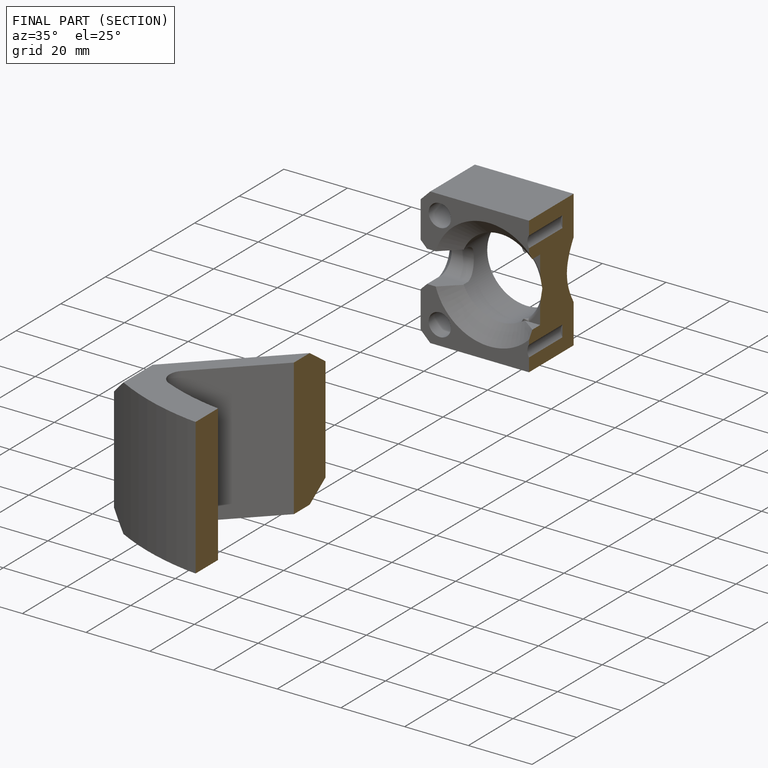
[diagram: finished part — half-section view (interior)]
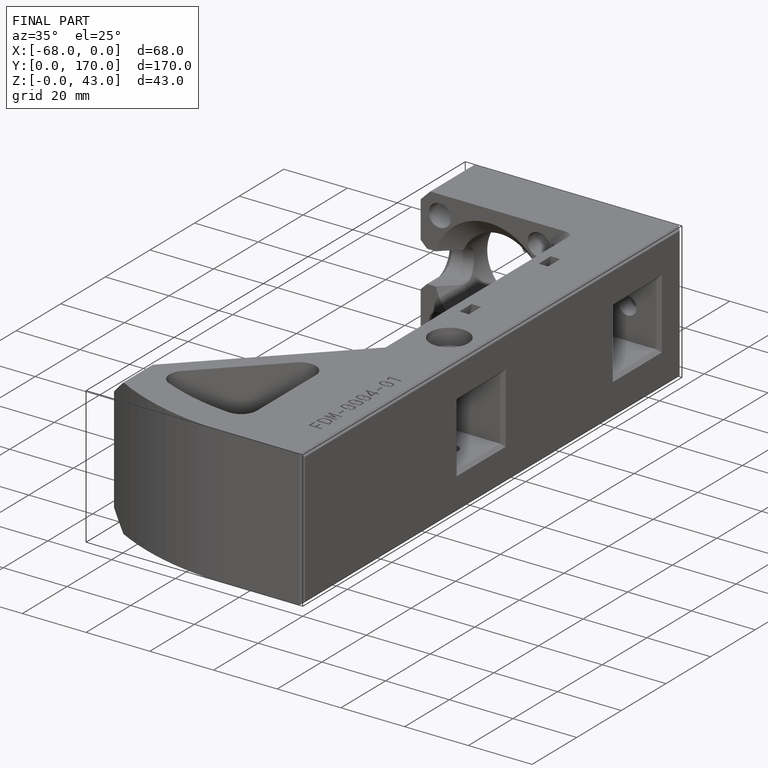
[diagram: finished part — iso view with bounding-box wireframe]
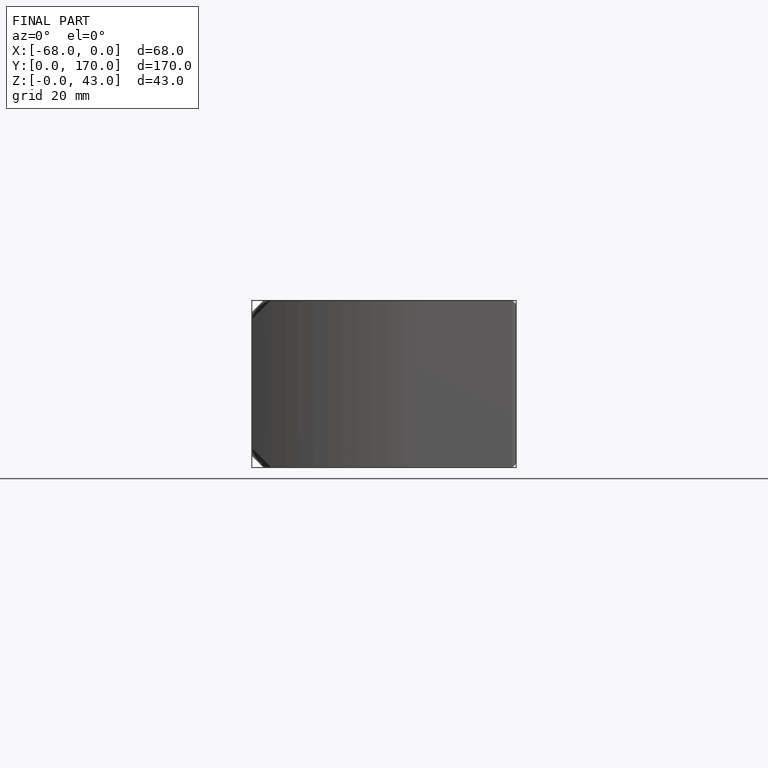
[diagram: finished part — front view with bounding-box wireframe]
